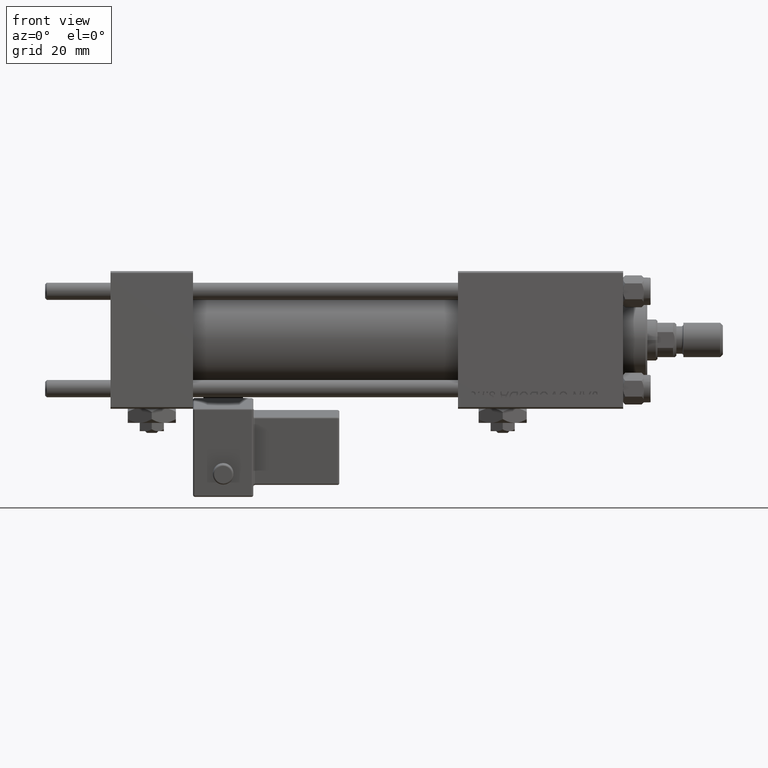
[diagram: clean part render]
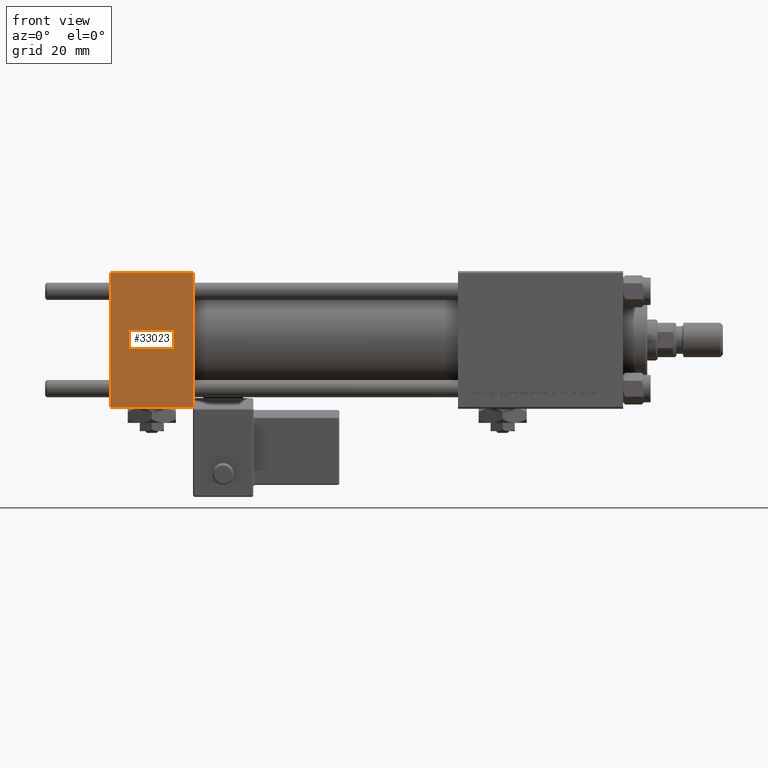
[diagram: same view with one face highlighted and labeled with its STEP entity id]
A machine part, front view. The second image highlights one B-rep face of the part: STEP entity #33023.
In plain terms, the highlighted planar face has unit normal (0, 1, 0).
Its self-contained STEP definition (entity closure, byte-faithful):
#4825 = LINE ( 'NONE', #50852, #47335 ) ;
#5503 = ORIENTED_EDGE ( 'NONE', *, *, #11220, .T. ) ;
#6242 = VERTEX_POINT ( 'NONE', #32082 ) ;
#7520 = VERTEX_POINT ( 'NONE', #30057 ) ;
#8965 = DIRECTION ( 'NONE',  ( 0.000000000000000000, 8.673617379884036705E-17, -1.000000000000000000 ) ) ;
#9301 = VECTOR ( 'NONE', #9487, 1000.000000000000000 ) ;
#9487 = DIRECTION ( 'NONE',  ( 0.000000000000000000, 8.673617379884036705E-17, -1.000000000000000000 ) ) ;
#10310 = CARTESIAN_POINT ( 'NONE',  ( 0.000000000000000000, -20.00000000000000355, 19.99999999999998934 ) ) ;
#10774 = CARTESIAN_POINT ( 'NONE',  ( 24.00000000000000000, -20.00000000000000000, -19.49999999999999645 ) ) ;
#11220 = EDGE_CURVE ( 'NONE', #7520, #20374, #34861, .T. ) ;
#12864 = DIRECTION ( 'NONE',  ( -1.000000000000000000, 0.000000000000000000, 0.000000000000000000 ) ) ;
#15252 = AXIS2_PLACEMENT_3D ( 'NONE', #35817, #31961, #19263 ) ;
#15644 = ORIENTED_EDGE ( 'NONE', *, *, #34274, .F. ) ;
#16677 = CARTESIAN_POINT ( 'NONE',  ( 24.00000000000000000, -20.00000000000000000, -19.49999999999999645 ) ) ;
#19263 = DIRECTION ( 'NONE',  ( 0.000000000000000000, -8.673617379884036705E-17, 1.000000000000000000 ) ) ;
#20374 = VERTEX_POINT ( 'NONE', #53559 ) ;
#23137 = FACE_OUTER_BOUND ( 'NONE', #48926, .T. ) ;
#25007 = CARTESIAN_POINT ( 'NONE',  ( 24.00000000000000000, -20.00000000000000355, 19.49999999999998224 ) ) ;
#25821 = LINE ( 'NONE', #25007, #50433 ) ;
#28285 = VERTEX_POINT ( 'NONE', #10774 ) ;
#29104 = LINE ( 'NONE', #16677, #36411 ) ;
#30057 = CARTESIAN_POINT ( 'NONE',  ( 0.000000000000000000, -20.00000000000000355, 19.49999999999998224 ) ) ;
#31961 = DIRECTION ( 'NONE',  ( -0.000000000000000000, 1.000000000000000000, 8.673617379884036705E-17 ) ) ;
#32082 = CARTESIAN_POINT ( 'NONE',  ( 24.00000000000000000, -20.00000000000000355, 19.49999999999998224 ) ) ;
#33023 = ADVANCED_FACE ( 'NONE', ( #23137 ), #52603, .F. ) ;
#33499 = DIRECTION ( 'NONE',  ( 1.000000000000000000, 0.000000000000000000, 0.000000000000000000 ) ) ;
#34274 = EDGE_CURVE ( 'NONE', #6242, #28285, #4825, .T. ) ;
#34861 = LINE ( 'NONE', #10310, #9301 ) ;
#35817 = CARTESIAN_POINT ( 'NONE',  ( 24.00000000000000000, -20.00000000000000355, 19.99999999999998934 ) ) ;
#36411 = VECTOR ( 'NONE', #33499, 1000.000000000000000 ) ;
#47335 = VECTOR ( 'NONE', #8965, 1000.000000000000000 ) ;
#47646 = ORIENTED_EDGE ( 'NONE', *, *, #48953, .T. ) ;
#47839 = ORIENTED_EDGE ( 'NONE', *, *, #52369, .T. ) ;
#48926 = EDGE_LOOP ( 'NONE', ( #5503, #47646, #15644, #47839 ) ) ;
#48953 = EDGE_CURVE ( 'NONE', #20374, #28285, #29104, .T. ) ;
#50433 = VECTOR ( 'NONE', #12864, 1000.000000000000000 ) ;
#50852 = CARTESIAN_POINT ( 'NONE',  ( 24.00000000000000000, -20.00000000000000355, 19.99999999999998934 ) ) ;
#52369 = EDGE_CURVE ( 'NONE', #6242, #7520, #25821, .T. ) ;
#52603 = PLANE ( 'NONE',  #15252 ) ;
#53559 = CARTESIAN_POINT ( 'NONE',  ( 0.000000000000000000, -20.00000000000000000, -19.49999999999999645 ) ) ;